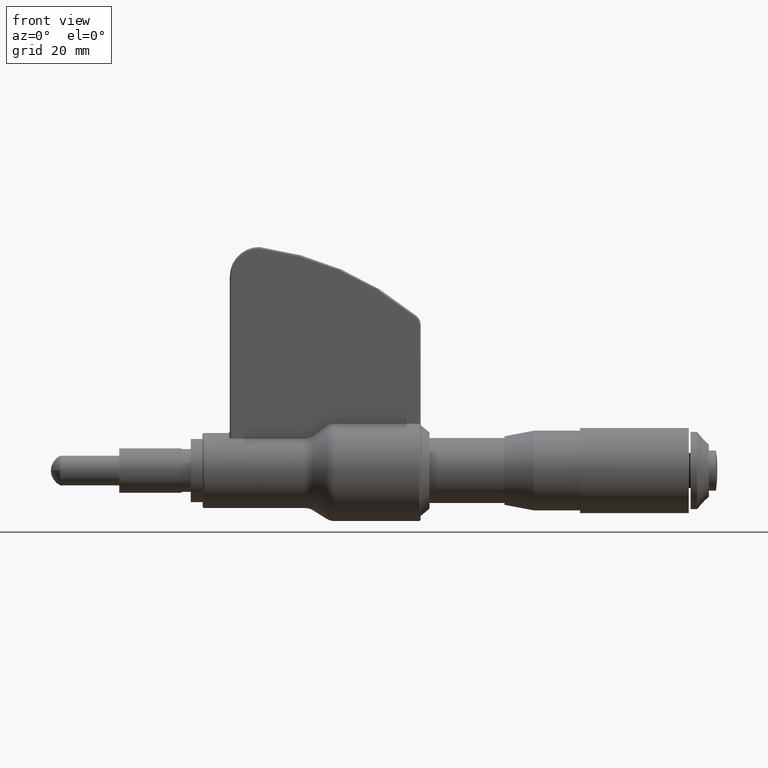
[diagram: clean part render]
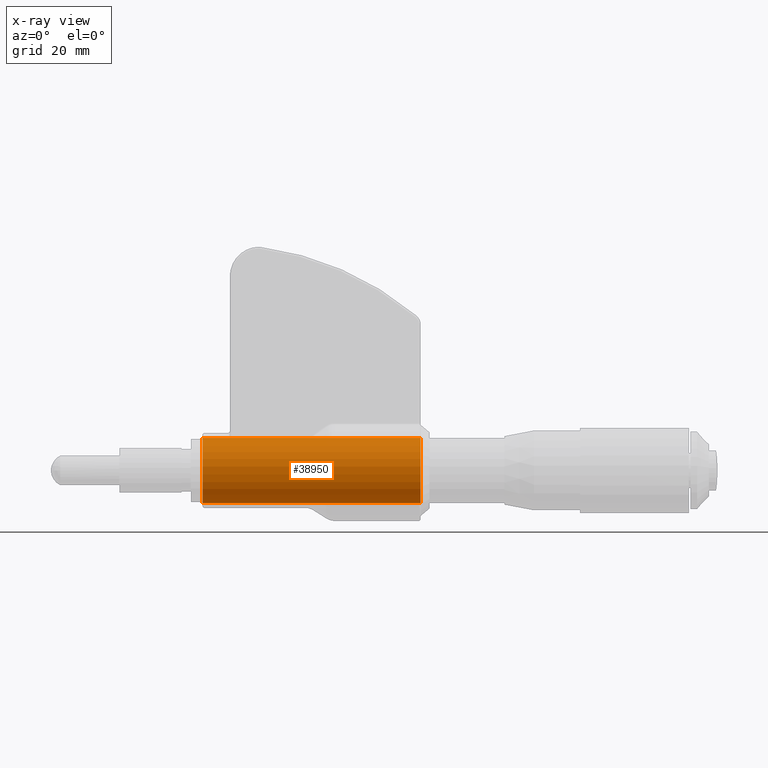
[diagram: x-ray — body ghosted, one internal face saturated and labeled with its STEP entity id]
A machine part, front view, then the same camera in x-ray: the body is ghosted and one INTERNAL B-rep face — a face not visible from any outside direction — is saturated and labeled: STEP entity #38950.
In plain terms, the highlighted cylindrical surface (edge-blend (fillet) strip) has radius 6.985 mm, axis along (1, 0, 0).
Its self-contained STEP definition (entity closure, byte-faithful):
#38944 = VERTEX_POINT ( 'NONE', #66554 ) ;
#38946 = ORIENTED_EDGE ( 'NONE', *, *, #39059, .T. ) ;
#38947 = VERTEX_POINT ( 'NONE', #66601 ) ;
#38950 = ADVANCED_FACE ( 'NONE', ( #66600 ), #66580, .F. ) ;
#38954 = EDGE_LOOP ( 'NONE', ( #39075, #38946, #38976, #38960 ) ) ;
#38957 = EDGE_CURVE ( 'NONE', #38947, #38978, #66634, .T. ) ;
#38960 = ORIENTED_EDGE ( 'NONE', *, *, #39070, .F. ) ;
#38976 = ORIENTED_EDGE ( 'NONE', *, *, #38957, .T. ) ;
#38978 = VERTEX_POINT ( 'NONE', #66612 ) ;
#39059 = EDGE_CURVE ( 'NONE', #39077, #38947, #66787, .T. ) ;
#39069 = EDGE_CURVE ( 'NONE', #39077, #38944, #66815, .T. ) ;
#39070 = EDGE_CURVE ( 'NONE', #38944, #38978, #66868, .T. ) ;
#39075 = ORIENTED_EDGE ( 'NONE', *, *, #39069, .F. ) ;
#39077 = VERTEX_POINT ( 'NONE', #66860 ) ;
#66554 = CARTESIAN_POINT ( 'NONE',  ( 0.0000000000000000000, 0.0000000000000000000, -0.2750000000000000200 ) ) ;
#66577 = DIRECTION ( 'NONE',  ( 0.0000000000000000000, 0.0000000000000000000, -1.000000000000000000 ) ) ;
#66578 = DIRECTION ( 'NONE',  ( 1.000000000000000000, 0.0000000000000000000, 0.0000000000000000000 ) ) ;
#66579 = AXIS2_PLACEMENT_3D ( 'NONE', #66581, #66578, #66577 ) ;
#66580 = CYLINDRICAL_SURFACE ( 'NONE', #66579, 0.2750000000000000200 ) ;
#66581 = CARTESIAN_POINT ( 'NONE',  ( 0.0000000000000000000, 0.0000000000000000000, 0.0000000000000000000 ) ) ;
#66600 = FACE_OUTER_BOUND ( 'NONE', #38954, .T. ) ;
#66601 = CARTESIAN_POINT ( 'NONE',  ( 1.845000000000000200, 3.367667473011537600E-017, 0.2750000000000000200 ) ) ;
#66612 = CARTESIAN_POINT ( 'NONE',  ( 1.845000000000000200, 0.0000000000000000000, -0.2750000000000000200 ) ) ;
#66630 = DIRECTION ( 'NONE',  ( 0.0000000000000000000, 0.0000000000000000000, -1.000000000000000000 ) ) ;
#66631 = DIRECTION ( 'NONE',  ( 1.000000000000000000, 0.0000000000000000000, 0.0000000000000000000 ) ) ;
#66632 = CARTESIAN_POINT ( 'NONE',  ( 1.845000000000000200, 0.0000000000000000000, 0.0000000000000000000 ) ) ;
#66633 = AXIS2_PLACEMENT_3D ( 'NONE', #66632, #66631, #66630 ) ;
#66634 = CIRCLE ( 'NONE', #66633, 0.2750000000000000200 ) ;
#66784 = DIRECTION ( 'NONE',  ( 1.000000000000000000, 0.0000000000000000000, 0.0000000000000000000 ) ) ;
#66785 = VECTOR ( 'NONE', #66784, 39.37007874015748100 ) ;
#66786 = CARTESIAN_POINT ( 'NONE',  ( 0.0000000000000000000, 3.367667473011537600E-017, 0.2750000000000000200 ) ) ;
#66787 = LINE ( 'NONE', #66786, #66785 ) ;
#66811 = DIRECTION ( 'NONE',  ( 0.0000000000000000000, 0.0000000000000000000, -1.000000000000000000 ) ) ;
#66812 = DIRECTION ( 'NONE',  ( 1.000000000000000000, 0.0000000000000000000, 0.0000000000000000000 ) ) ;
#66813 = CARTESIAN_POINT ( 'NONE',  ( 0.0000000000000000000, 0.0000000000000000000, 0.0000000000000000000 ) ) ;
#66814 = AXIS2_PLACEMENT_3D ( 'NONE', #66813, #66812, #66811 ) ;
#66815 = CIRCLE ( 'NONE', #66814, 0.2750000000000000200 ) ;
#66860 = CARTESIAN_POINT ( 'NONE',  ( 0.0000000000000000000, 3.367667473011537600E-017, 0.2750000000000000200 ) ) ;
#66865 = DIRECTION ( 'NONE',  ( 1.000000000000000000, 0.0000000000000000000, 0.0000000000000000000 ) ) ;
#66866 = VECTOR ( 'NONE', #66865, 39.37007874015748100 ) ;
#66867 = CARTESIAN_POINT ( 'NONE',  ( 0.0000000000000000000, 0.0000000000000000000, -0.2750000000000000200 ) ) ;
#66868 = LINE ( 'NONE', #66867, #66866 ) ;